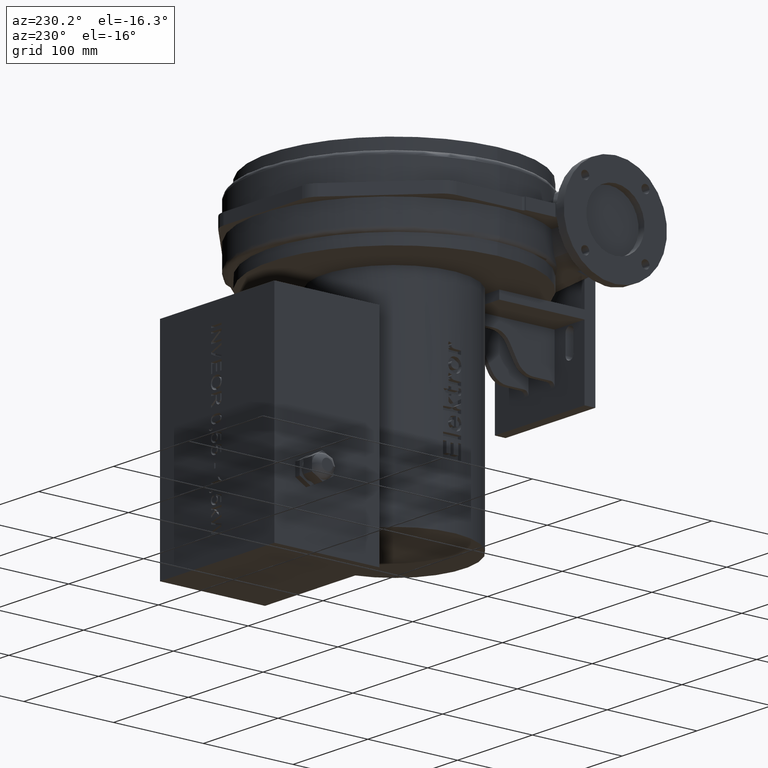
[diagram: clean part render]
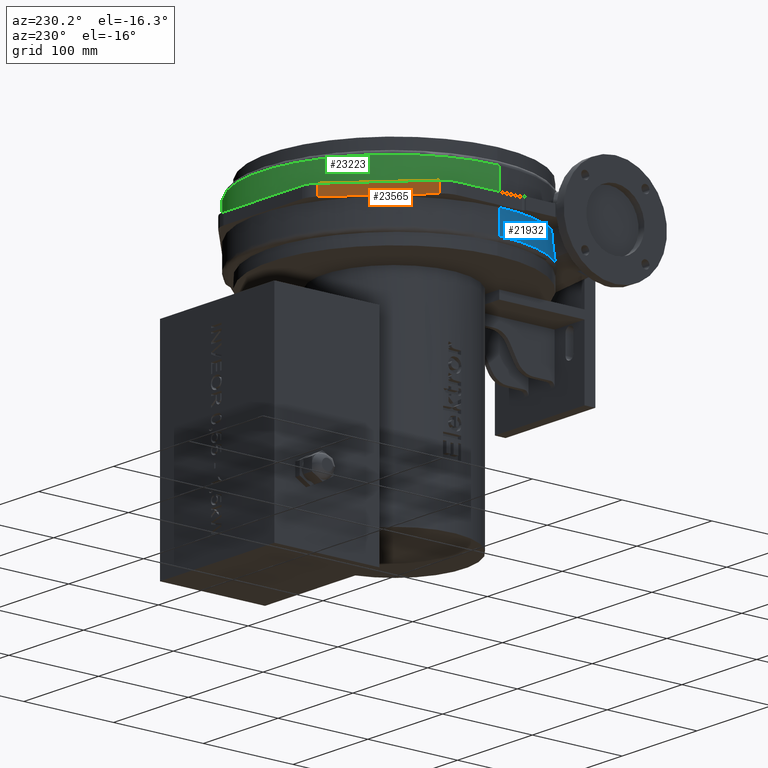
[diagram: same view with three faces highlighted in distinct colors, each labeled with its STEP entity id]
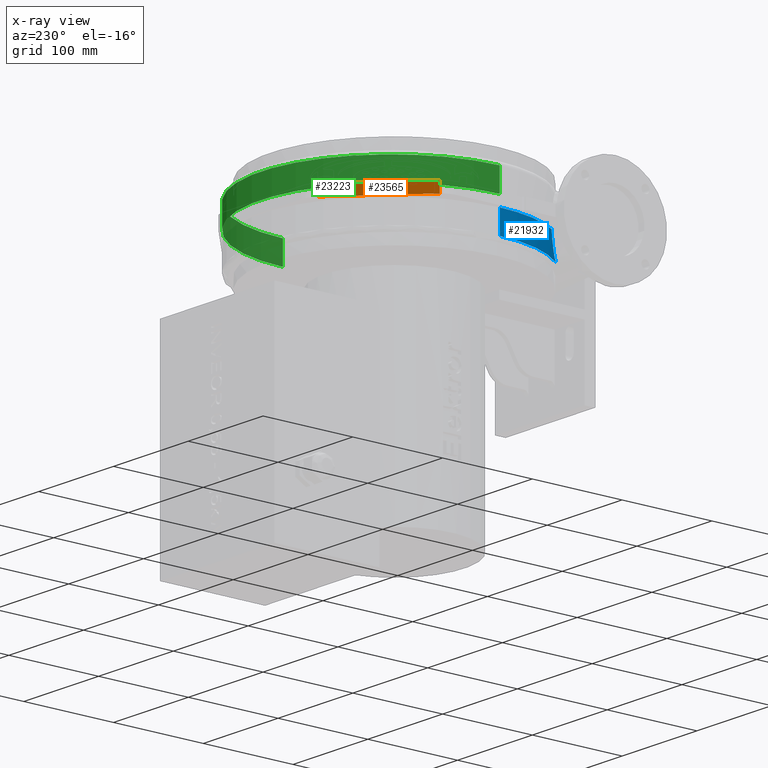
[diagram: x-ray of the same camera — body ghosted, the three highlighted faces saturated]
A machine part, auxiliary view with three faces highlighted in distinct colors.
The next image is the same camera in x-ray (body ghosted, the three faces saturated) — at least one of them is partly hidden behind the body in this view.
Their STEP definitions:

[orange] entity #23565 — the highlighted planar face has unit normal (-0.7071, 0.7071, -0).
#23432=CARTESIAN_POINT('',(-66.540151263927484,261.14213562373101,49.999999999999993));
#23433=VERTEX_POINT('',#23432);
#23441=CARTESIAN_POINT('',(-140.64213562373095,187.04015126392756,49.999999999999986));
#23442=VERTEX_POINT('',#23441);
#23443=CARTESIAN_POINT('',(-140.64213562373098,187.0401512639275,49.999999999999986));
#23444=DIRECTION('',(0.707106781186547,0.707106781186548,6.780245E-017));
#23445=VECTOR('',#23444,104.79603128039308);
#23446=LINE('',#23443,#23445);
#23447=EDGE_CURVE('',#23442,#23433,#23446,.T.);
#23524=CARTESIAN_POINT('',(-66.540151263927484,261.14213562373101,37.999999999999986));
#23525=VERTEX_POINT('',#23524);
#23533=CARTESIAN_POINT('',(-66.540151263927484,261.14213562373101,37.999999999999986));
#23534=DIRECTION('',(0.0,0.0,1.0));
#23535=VECTOR('',#23534,12.0);
#23536=LINE('',#23533,#23535);
#23537=EDGE_CURVE('',#23525,#23433,#23536,.T.);
#23542=CARTESIAN_POINT('',(-140.64213562373095,187.04015126392756,43.999999999999979));
#23543=DIRECTION('',(-0.707106781186548,0.707106781186547,-8.659561E-017));
#23544=DIRECTION('',(0.0,0.0,1.0));
#23545=AXIS2_PLACEMENT_3D('',#23542,#23543,#23544);
#23546=PLANE('',#23545);
#23547=ORIENTED_EDGE('',*,*,#23447,.T.);
#23548=ORIENTED_EDGE('',*,*,#23537,.F.);
#23549=CARTESIAN_POINT('',(-140.64213562373095,187.04015126392756,37.999999999999979));
#23550=VERTEX_POINT('',#23549);
#23551=CARTESIAN_POINT('',(-66.540151263927484,261.14213562373101,37.999999999999986));
#23552=DIRECTION('',(-0.707106781186547,-0.707106781186548,-6.780245E-017));
#23553=VECTOR('',#23552,104.79603128039308);
#23554=LINE('',#23551,#23553);
#23555=EDGE_CURVE('',#23525,#23550,#23554,.T.);
#23556=ORIENTED_EDGE('',*,*,#23555,.T.);
#23557=CARTESIAN_POINT('',(-140.64213562373095,187.04015126392756,37.999999999999979));
#23558=DIRECTION('',(0.0,0.0,1.0));
#23559=VECTOR('',#23558,12.0);
#23560=LINE('',#23557,#23559);
#23561=EDGE_CURVE('',#23550,#23442,#23560,.T.);
#23562=ORIENTED_EDGE('',*,*,#23561,.T.);
#23563=EDGE_LOOP('',(#23547,#23548,#23556,#23562));
#23564=FACE_OUTER_BOUND('',#23563,.T.);
#23565=ADVANCED_FACE('',(#23564),#23546,.T.);

[blue] entity #21932 — the highlighted cylindrical surface (partial cylindrical patch) has radius 141 mm, axis along (-0, -0, 1).
#21879=CARTESIAN_POINT('',(-2.207459E-015,120.50000000000006,43.999999999999993));
#21880=DIRECTION('',(-1.224647E-016,-1.513340E-030,1.0));
#21881=DIRECTION('',(-1.0,0.0,0.0));
#21882=AXIS2_PLACEMENT_3D('',#21879,#21880,#21881);
#21883=CYLINDRICAL_SURFACE('',#21882,141.0);
#21884=CARTESIAN_POINT('',(-118.28443662424513,43.75501936618317,37.999999999999979));
#21885=VERTEX_POINT('',#21884);
#21886=CARTESIAN_POINT('',(-140.99999999999994,120.50000000000009,37.999999999999979));
#21887=VERTEX_POINT('',#21886);
#21888=CARTESIAN_POINT('',(-1.472671E-015,120.50000000000006,37.999999999999993));
#21889=DIRECTION('',(0.0,0.0,-1.0));
#21890=DIRECTION('',(-1.0,0.0,0.0));
#21891=AXIS2_PLACEMENT_3D('',#21888,#21889,#21890);
#21892=CIRCLE('',#21891,141.0);
#21893=EDGE_CURVE('',#21885,#21887,#21892,.T.);
#21894=ORIENTED_EDGE('',*,*,#21893,.T.);
#21895=CARTESIAN_POINT('',(-140.99999999999994,120.50000000000009,12.499999999999973));
#21896=VERTEX_POINT('',#21895);
#21897=CARTESIAN_POINT('',(-140.99999999999994,120.50000000000009,12.499999999999975));
#21898=DIRECTION('',(0.0,0.0,1.0));
#21899=VECTOR('',#21898,25.500000000000004);
#21900=LINE('',#21897,#21899);
#21901=EDGE_CURVE('',#21896,#21887,#21900,.T.);
#21902=ORIENTED_EDGE('',*,*,#21901,.F.);
#21903=CARTESIAN_POINT('',(-109.10887180046166,31.190123197764894,12.499999999999979));
#21904=VERTEX_POINT('',#21903);
#21905=CARTESIAN_POINT('',(1.650178E-015,120.50000000000006,12.499999999999991));
#21906=DIRECTION('',(6.123234E-017,6.123234E-017,-1.0));
#21907=DIRECTION('',(-0.707106781186548,-0.707106781186547,-8.659561E-017));
#21908=AXIS2_PLACEMENT_3D('',#21905,#21906,#21907);
#21909=CIRCLE('',#21908,140.99999999999997);
#21910=EDGE_CURVE('',#21904,#21896,#21909,.T.);
#21911=ORIENTED_EDGE('',*,*,#21910,.F.);
#21912=CARTESIAN_POINT('',(-112.82477134558127,35.933038538580035,15.392465006266622));
#21913=VERTEX_POINT('',#21912);
#21914=CARTESIAN_POINT('',(-109.10887180046163,31.190123197764876,12.499999999999972));
#21915=CARTESIAN_POINT('',(-110.42176176730351,32.794066100938565,13.328234743962446));
#21916=CARTESIAN_POINT('',(-111.66249341468792,34.38238873956977,14.286443452371703));
#21917=CARTESIAN_POINT('',(-112.82477134558128,35.933038538580035,15.392465006266622));
#21918=B_SPLINE_CURVE_WITH_KNOTS('',3,(#21914,#21915,#21916,#21917),.UNSPECIFIED.,.F.,.U.,(4,4),(0.0,0.669631027021873),.UNSPECIFIED.);
#21919=EDGE_CURVE('',#21904,#21913,#21918,.T.);
#21920=ORIENTED_EDGE('',*,*,#21919,.T.);
#21921=CARTESIAN_POINT('',(-112.82477134558128,35.933038538580035,15.392465006266626));
#21922=CARTESIAN_POINT('',(-115.49834201969801,39.499975256781553,21.490125475347952));
#21923=CARTESIAN_POINT('',(-116.98548641678308,41.775789337539749,27.513854563113817));
#21924=CARTESIAN_POINT('',(-117.99820665336151,43.314662806879582,34.854892935163299));
#21925=CARTESIAN_POINT('',(-118.16499791247365,43.570932529280739,36.424038497862092));
#21926=CARTESIAN_POINT('',(-118.28443662424516,43.755019366183177,37.999999999999979));
#21927=B_SPLINE_CURVE_WITH_KNOTS('',3,(#21921,#21922,#21923,#21924,#21925,#21926),.UNSPECIFIED.,.F.,.U.,(4,2,4),(0.0,2.265992780385969,2.876951331258393),.UNSPECIFIED.);
#21928=EDGE_CURVE('',#21913,#21885,#21927,.T.);
#21929=ORIENTED_EDGE('',*,*,#21928,.T.);
#21930=EDGE_LOOP('',(#21894,#21902,#21911,#21920,#21929));
#21931=FACE_OUTER_BOUND('',#21930,.T.);
#21932=ADVANCED_FACE('',(#21931),#21883,.T.);

[green] entity #23223 — the highlighted cylindrical surface (partial cylindrical patch) has radius 145 mm, axis along (-0, -0, 1).
#21851=CARTESIAN_POINT('',(149.0000000000002,120.50000000000004,75.500000000000014));
#21852=VERTEX_POINT('',#21851);
#22512=CARTESIAN_POINT('',(-140.99999999999994,120.50000000000009,75.499999999999986));
#22513=VERTEX_POINT('',#22512);
#22514=CARTESIAN_POINT('',(3.999999999999994,120.50000000000006,75.5));
#22515=DIRECTION('',(0.0,0.0,1.0));
#22516=DIRECTION('',(0.0,1.0,0.0));
#22517=AXIS2_PLACEMENT_3D('',#22514,#22515,#22516);
#22518=CIRCLE('',#22517,144.99999999999997);
#22519=EDGE_CURVE('',#21852,#22513,#22518,.T.);
#23172=CARTESIAN_POINT('',(-140.99999999999994,120.50000000000009,49.999999999999986));
#23173=VERTEX_POINT('',#23172);
#23190=CARTESIAN_POINT('',(-140.99999999999994,120.50000000000009,49.999999999999979));
#23191=DIRECTION('',(0.0,0.0,1.0));
#23192=VECTOR('',#23191,25.500000000000007);
#23193=LINE('',#23190,#23192);
#23194=EDGE_CURVE('',#23173,#22513,#23193,.T.);
#23199=CARTESIAN_POINT('',(3.999999999999998,120.50000000000006,43.999999999999993));
#23200=DIRECTION('',(-1.224647E-016,-1.513340E-030,1.0));
#23201=DIRECTION('',(1.0,0.0,0.0));
#23202=AXIS2_PLACEMENT_3D('',#23199,#23200,#23201);
#23203=CYLINDRICAL_SURFACE('',#23202,144.99999999999997);
#23204=CARTESIAN_POINT('',(149.0000000000002,120.50000000000004,50.000000000000014));
#23205=VERTEX_POINT('',#23204);
#23206=CARTESIAN_POINT('',(3.999999999999997,120.50000000000006,50.0));
#23207=DIRECTION('',(0.0,0.0,1.0));
#23208=DIRECTION('',(1.0,0.0,0.0));
#23209=AXIS2_PLACEMENT_3D('',#23206,#23207,#23208);
#23210=CIRCLE('',#23209,144.99999999999997);
#23211=EDGE_CURVE('',#23205,#23173,#23210,.T.);
#23212=ORIENTED_EDGE('',*,*,#23211,.T.);
#23213=ORIENTED_EDGE('',*,*,#23194,.T.);
#23214=ORIENTED_EDGE('',*,*,#22519,.F.);
#23215=CARTESIAN_POINT('',(149.0000000000002,120.50000000000004,50.000000000000014));
#23216=DIRECTION('',(0.0,0.0,1.0));
#23217=VECTOR('',#23216,25.5);
#23218=LINE('',#23215,#23217);
#23219=EDGE_CURVE('',#23205,#21852,#23218,.T.);
#23220=ORIENTED_EDGE('',*,*,#23219,.F.);
#23221=EDGE_LOOP('',(#23212,#23213,#23214,#23220));
#23222=FACE_OUTER_BOUND('',#23221,.T.);
#23223=ADVANCED_FACE('',(#23222),#23203,.T.);